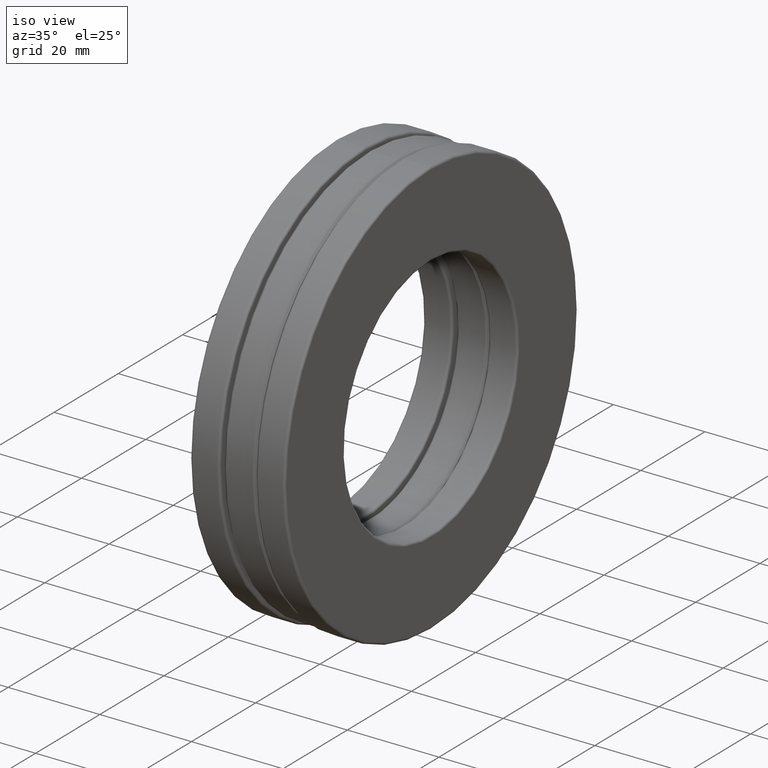
[diagram: clean part render]
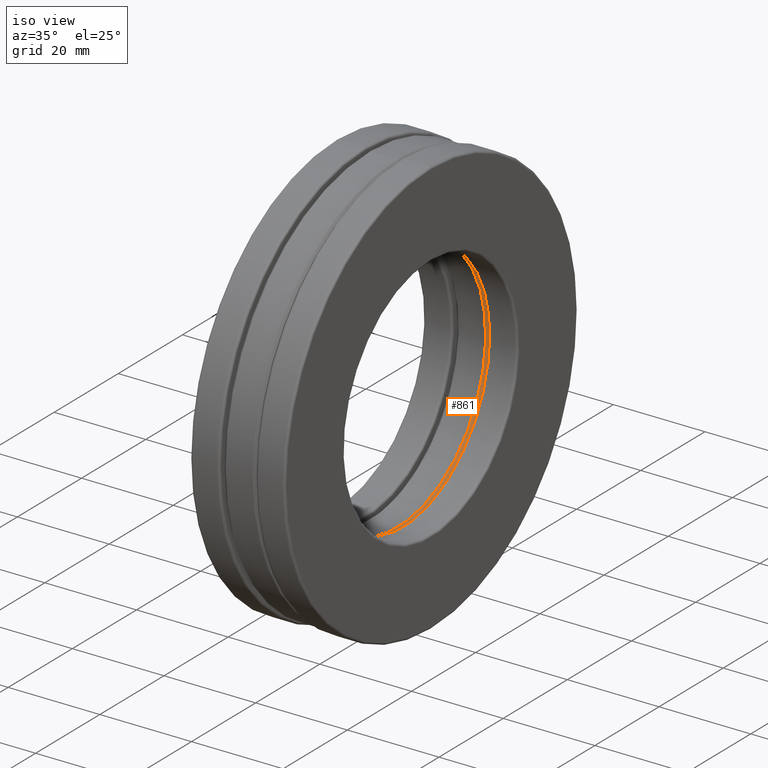
[diagram: same view with one face highlighted and labeled with its STEP entity id]
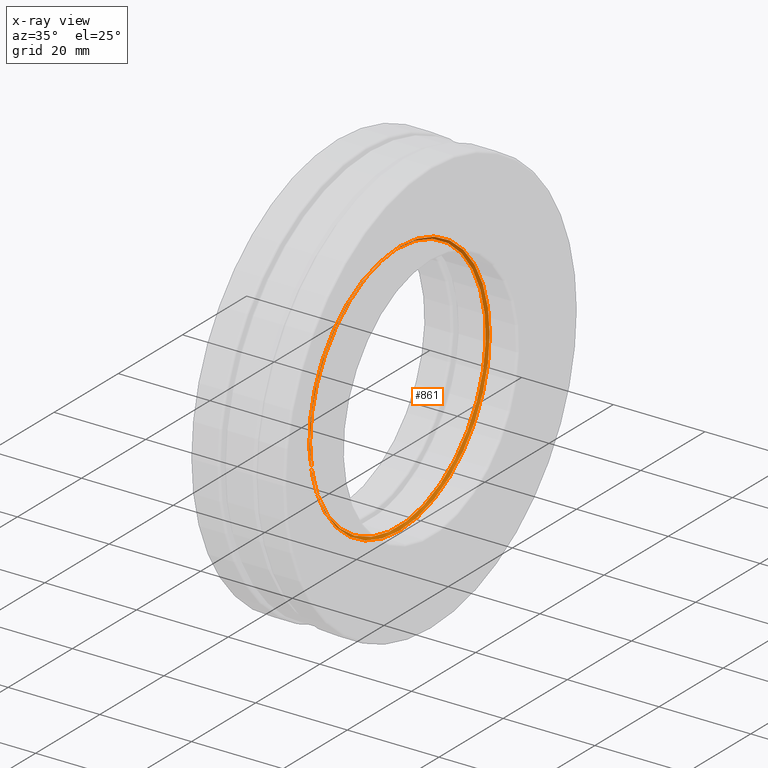
[diagram: x-ray of the same camera — body ghosted, the highlighted face saturated]
A machine part, iso view. The second image highlights one B-rep face of the part: STEP entity #861.
The next image is the same camera in x-ray: the body ghosted, the highlighted face saturated — about 1% of this face is hidden behind the body in this view.
In plain terms, the highlighted conical surface has half-angle 45 deg.
Its self-contained STEP definition (entity closure, byte-faithful):
#92 = AXIS2_PLACEMENT_3D ( 'NONE', #315, #1113, #1332 ) ;
#123 = ORIENTED_EDGE ( 'NONE', *, *, #945, .F. ) ;
#283 = VERTEX_POINT ( 'NONE', #869 ) ;
#291 = CARTESIAN_POINT ( 'NONE',  ( 0.1360000000000000700, 0.0000000000000000000, 1.102500000000000000 ) ) ;
#308 = DIRECTION ( 'NONE',  ( 0.0000000000000000000, 0.0000000000000000000, -1.000000000000000000 ) ) ;
#315 = CARTESIAN_POINT ( 'NONE',  ( 0.1360000000000000700, 0.0000000000000000000, 0.0000000000000000000 ) ) ;
#345 = CIRCLE ( 'NONE', #621, 1.082500000000000000 ) ;
#478 = VERTEX_POINT ( 'NONE', #291 ) ;
#535 = EDGE_LOOP ( 'NONE', ( #1150 ) ) ;
#553 = CARTESIAN_POINT ( 'NONE',  ( 0.1360000000000000700, 0.0000000000000000000, 0.0000000000000000000 ) ) ;
#621 = AXIS2_PLACEMENT_3D ( 'NONE', #669, #1354, #687 ) ;
#669 = CARTESIAN_POINT ( 'NONE',  ( 0.1160000000000000800, 0.0000000000000000000, 0.0000000000000000000 ) ) ;
#687 = DIRECTION ( 'NONE',  ( 0.0000000000000000000, 0.0000000000000000000, 1.000000000000000000 ) ) ;
#692 = CONICAL_SURFACE ( 'NONE', #1222, 1.102500000000000000, 0.7853981633974500600 ) ;
#732 = CIRCLE ( 'NONE', #92, 1.102500000000000000 ) ;
#773 = DIRECTION ( 'NONE',  ( 1.000000000000000000, 0.0000000000000000000, 0.0000000000000000000 ) ) ;
#846 = EDGE_LOOP ( 'NONE', ( #123 ) ) ;
#861 = ADVANCED_FACE ( 'NONE', ( #1420, #1189 ), #692, .F. ) ;
#869 = CARTESIAN_POINT ( 'NONE',  ( 0.1160000000000000800, 0.0000000000000000000, 1.082500000000000000 ) ) ;
#945 = EDGE_CURVE ( 'NONE', #478, #478, #732, .T. ) ;
#1113 = DIRECTION ( 'NONE',  ( -1.000000000000000000, -0.0000000000000000000, -0.0000000000000000000 ) ) ;
#1150 = ORIENTED_EDGE ( 'NONE', *, *, #1225, .T. ) ;
#1189 = FACE_OUTER_BOUND ( 'NONE', #846, .T. ) ;
#1222 = AXIS2_PLACEMENT_3D ( 'NONE', #553, #773, #308 ) ;
#1225 = EDGE_CURVE ( 'NONE', #283, #283, #345, .T. ) ;
#1332 = DIRECTION ( 'NONE',  ( 0.0000000000000000000, 0.0000000000000000000, 1.000000000000000000 ) ) ;
#1354 = DIRECTION ( 'NONE',  ( -1.000000000000000000, -0.0000000000000000000, -0.0000000000000000000 ) ) ;
#1420 = FACE_BOUND ( 'NONE', #535, .T. ) ;